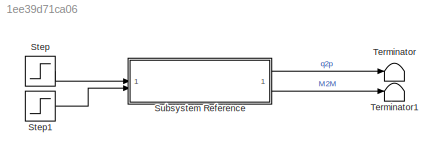
MODEL slx_1ee39d71ca06
KIND model
CONFIG AbsTol = auto
CONFIG EnableMultiTasking = off
CONFIG FixedStep = auto
CONFIG MaxStep = auto
CONFIG MinStep = auto
CONFIG RelTol = 1e-3
CONFIG SampleTimeConstraint = Unconstrained
CONFIG SolverName = VariableStepAuto
CONFIG StartTime = 0.0
CONFIG StopTime = 1
BLOCK [Step] Step
  SampleTime = 0
  Time = 0
BLOCK [Step] Step1
  SampleTime = 0
  Time = 0
BLOCK [SubSystem] Subsystem Reference
  ReferencedSubsystem = Gearbox
BLOCK [Terminator] Terminator
BLOCK [Terminator] Terminator1
LINE Step1:1 -> Subsystem Reference:2
LINE Step:1 -> Subsystem Reference:1
LINE Subsystem Reference:1 -> Terminator:1
LINE Subsystem Reference:2 -> Terminator1:1
